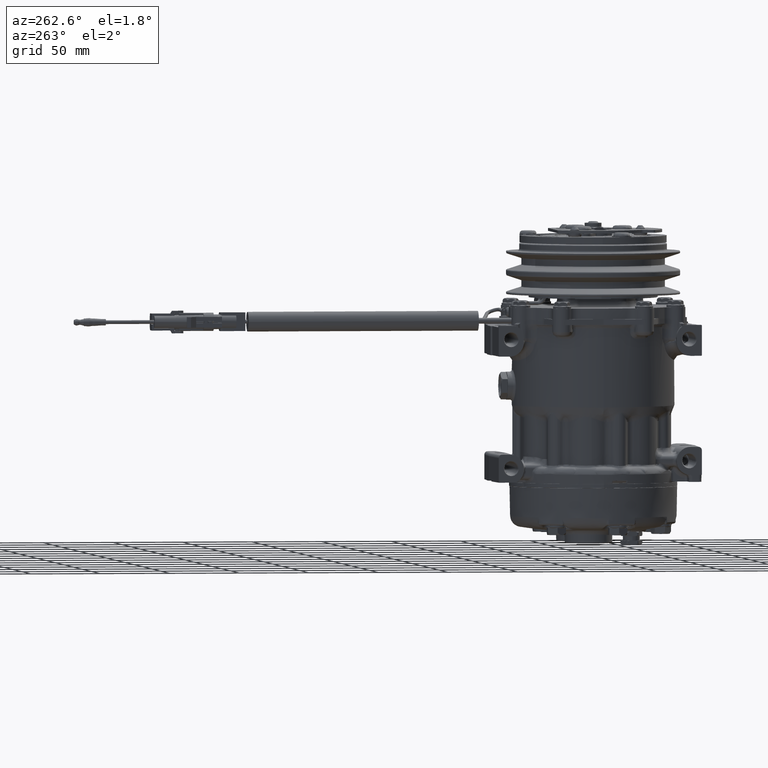
[diagram: clean part render]
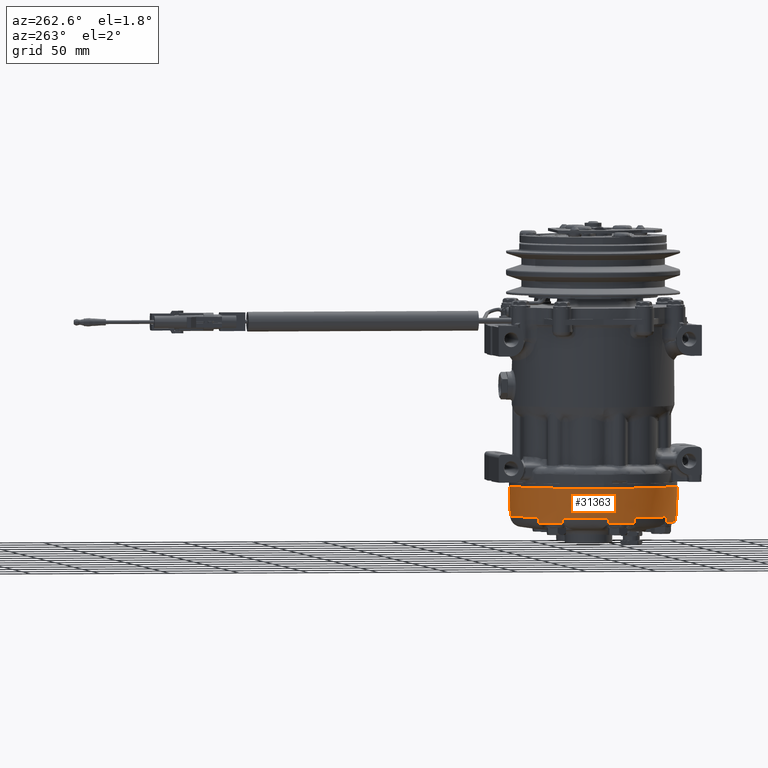
[diagram: same view with one face highlighted and labeled with its STEP entity id]
A machine part, auxiliary view. The second image highlights one B-rep face of the part: STEP entity #31363.
In plain terms, the highlighted conical surface has half-angle 1 deg.
Its self-contained STEP definition (entity closure, byte-faithful):
#30788 = VERTEX_POINT ( 'NONE', #82157 ) ;
#30812 = VERTEX_POINT ( 'NONE', #82187 ) ;
#31239 = VERTEX_POINT ( 'NONE', #83117 ) ;
#31241 = EDGE_LOOP ( 'NONE', ( #31367, #31371, #31351, #31251, #31366, #31243, #31248, #31338, #31445, #31343, #31309, #31335, #31339, #31320, #31316, #31443, #31330, #31312, #31337 ) ) ;
#31243 = ORIENTED_EDGE ( 'NONE', *, *, #31245, .F. ) ;
#31245 = EDGE_CURVE ( 'NONE', #31247, #30812, #83116, .T. ) ;
#31247 = VERTEX_POINT ( 'NONE', #83111 ) ;
#31248 = ORIENTED_EDGE ( 'NONE', *, *, #31317, .F. ) ;
#31251 = ORIENTED_EDGE ( 'NONE', *, *, #31365, .F. ) ;
#31252 = VERTEX_POINT ( 'NONE', #83109 ) ;
#31253 = EDGE_CURVE ( 'NONE', #31254, #31239, #83108, .T. ) ;
#31254 = VERTEX_POINT ( 'NONE', #83104 ) ;
#31255 = EDGE_CURVE ( 'NONE', #30812, #31252, #83102, .T. ) ;
#31287 = EDGE_CURVE ( 'NONE', #31354, #31336, #83187, .T. ) ;
#31309 = ORIENTED_EDGE ( 'NONE', *, *, #31333, .F. ) ;
#31310 = VERTEX_POINT ( 'NONE', #83210 ) ;
#31312 = ORIENTED_EDGE ( 'NONE', *, *, #31313, .F. ) ;
#31313 = EDGE_CURVE ( 'NONE', #31336, #31332, #83209, .T. ) ;
#31314 = EDGE_CURVE ( 'NONE', #31324, #31346, #83204, .T. ) ;
#31315 = EDGE_CURVE ( 'NONE', #31322, #31318, #83199, .T. ) ;
#31316 = ORIENTED_EDGE ( 'NONE', *, *, #31440, .F. ) ;
#31317 = EDGE_CURVE ( 'NONE', #31346, #31247, #83194, .T. ) ;
#31318 = VERTEX_POINT ( 'NONE', #83190 ) ;
#31320 = ORIENTED_EDGE ( 'NONE', *, *, #31315, .F. ) ;
#31322 = VERTEX_POINT ( 'NONE', #83189 ) ;
#31324 = VERTEX_POINT ( 'NONE', #83188 ) ;
#31326 = EDGE_CURVE ( 'NONE', #31327, #31310, #83241, .T. ) ;
#31327 = VERTEX_POINT ( 'NONE', #83236 ) ;
#31328 = VERTEX_POINT ( 'NONE', #83235 ) ;
#31329 = EDGE_CURVE ( 'NONE', #31442, #31441, #83234, .T. ) ;
#31330 = ORIENTED_EDGE ( 'NONE', *, *, #31331, .F. ) ;
#31331 = EDGE_CURVE ( 'NONE', #31332, #31442, #83229, .T. ) ;
#31332 = VERTEX_POINT ( 'NONE', #83228 ) ;
#31333 = EDGE_CURVE ( 'NONE', #31310, #31448, #83223, .T. ) ;
#31335 = ORIENTED_EDGE ( 'NONE', *, *, #31326, .F. ) ;
#31336 = VERTEX_POINT ( 'NONE', #83222 ) ;
#31337 = ORIENTED_EDGE ( 'NONE', *, *, #31287, .F. ) ;
#31338 = ORIENTED_EDGE ( 'NONE', *, *, #31314, .F. ) ;
#31339 = ORIENTED_EDGE ( 'NONE', *, *, #31341, .F. ) ;
#31341 = EDGE_CURVE ( 'NONE', #31318, #31327, #83269, .T. ) ;
#31343 = ORIENTED_EDGE ( 'NONE', *, *, #31344, .F. ) ;
#31344 = EDGE_CURVE ( 'NONE', #31448, #31328, #83263, .T. ) ;
#31346 = VERTEX_POINT ( 'NONE', #83259 ) ;
#31351 = ORIENTED_EDGE ( 'NONE', *, *, #31353, .F. ) ;
#31353 = EDGE_CURVE ( 'NONE', #30788, #31239, #83252, .T. ) ;
#31354 = VERTEX_POINT ( 'NONE', #83253 ) ;
#31363 = ADVANCED_FACE ( 'NONE', ( #83303 ), #83295, .T. ) ;
#31365 = EDGE_CURVE ( 'NONE', #31252, #30788, #83291, .T. ) ;
#31366 = ORIENTED_EDGE ( 'NONE', *, *, #31255, .F. ) ;
#31367 = ORIENTED_EDGE ( 'NONE', *, *, #31369, .F. ) ;
#31369 = EDGE_CURVE ( 'NONE', #31254, #31354, #83287, .T. ) ;
#31371 = ORIENTED_EDGE ( 'NONE', *, *, #31253, .T. ) ;
#31440 = EDGE_CURVE ( 'NONE', #31441, #31322, #83340, .T. ) ;
#31441 = VERTEX_POINT ( 'NONE', #83339 ) ;
#31442 = VERTEX_POINT ( 'NONE', #83341 ) ;
#31443 = ORIENTED_EDGE ( 'NONE', *, *, #31329, .F. ) ;
#31445 = ORIENTED_EDGE ( 'NONE', *, *, #31447, .F. ) ;
#31447 = EDGE_CURVE ( 'NONE', #31328, #31324, #83385, .T. ) ;
#31448 = VERTEX_POINT ( 'NONE', #83384 ) ;
#82157 = CARTESIAN_POINT ( 'NONE',  ( -56.59656727694814300, -16.71634188539467300, -61.35084198468192800 ) ) ;
#82187 = CARTESIAN_POINT ( 'NONE',  ( -58.42970723182837400, 8.052095088533175000, -61.35084198468184300 ) ) ;
#83098 = DIRECTION ( 'NONE',  ( -6.983277770476760500E-015, 1.000000000000000000, 3.469951687193421400E-015 ) ) ;
#83099 = DIRECTION ( 'NONE',  ( 2.417750077055339500E-029, -3.462353714736198700E-015, 1.000000000000000000 ) ) ;
#83100 = CARTESIAN_POINT ( 'NONE',  ( 1.018713123910802900, -0.0001151383021147367500, -61.35084198468187100 ) ) ;
#83101 = AXIS2_PLACEMENT_3D ( 'NONE', #83100, #83099, #83098 ) ;
#83102 = CIRCLE ( 'NONE', #83101, 59.99127246799999800 ) ;
#83104 = CARTESIAN_POINT ( 'NONE',  ( 1.018713123911211900, -59.62190735825755200, -82.51835118388704900 ) ) ;
#83105 = DIRECTION ( 'NONE',  ( 1.197323407885318500E-016, -0.01745240646579495100, 0.9998476951558935600 ) ) ;
#83106 = VECTOR ( 'NONE', #83105, 1000.000000000000200 ) ;
#83107 = CARTESIAN_POINT ( 'NONE',  ( 1.018713123911211500, -59.55193577330202000, -86.52702059468208500 ) ) ;
#83108 = LINE ( 'NONE', #83107, #83106 ) ;
#83109 = CARTESIAN_POINT ( 'NONE',  ( -58.67992344889228900, -5.918355052177898500, -61.35084198468189200 ) ) ;
#83111 = CARTESIAN_POINT ( 'NONE',  ( 1.018713123910383900, 59.99115732969788400, -61.35084198468166500 ) ) ;
#83112 = DIRECTION ( 'NONE',  ( -6.983277770476760500E-015, 1.000000000000000000, 3.469951687193421400E-015 ) ) ;
#83113 = DIRECTION ( 'NONE',  ( 2.417750077055339500E-029, -3.462353714736198700E-015, 1.000000000000000000 ) ) ;
#83114 = CARTESIAN_POINT ( 'NONE',  ( 1.018713123910802900, -0.0001151383021147367500, -61.35084198468187100 ) ) ;
#83115 = AXIS2_PLACEMENT_3D ( 'NONE', #83114, #83113, #83112 ) ;
#83116 = CIRCLE ( 'NONE', #83115, 59.99127246799999800 ) ;
#83117 = CARTESIAN_POINT ( 'NONE',  ( 1.018713123911214400, -59.99138760630211200, -61.35084198468208400 ) ) ;
#83182 = CARTESIAN_POINT ( 'NONE',  ( -15.68775299800917400, -57.16053265597155800, -86.52702052665800600 ) ) ;
#83183 = CARTESIAN_POINT ( 'NONE',  ( -15.64859905738407900, -57.19682599524713900, -85.16055151009337000 ) ) ;
#83184 = CARTESIAN_POINT ( 'NONE',  ( -15.60928279215471900, -57.23255687820524400, -83.82432837316167700 ) ) ;
#83185 = CARTESIAN_POINT ( 'NONE',  ( -15.56980824969317500, -57.26772436099593500, -82.51835123153917100 ) ) ;
#83187 = B_SPLINE_CURVE_WITH_KNOTS ( 'NONE', 3,
 ( #83185, #83184, #83183, #83182 ),
 .UNSPECIFIED., .F., .F.,
 ( 4, 4 ),
 ( 0.0000000000000000000, 1.000000000000000000 ),
 .UNSPECIFIED. ) ;
#83188 = CARTESIAN_POINT ( 'NONE',  ( -38.81472373674354500, 44.36265546197010000, -82.51835121383140900 ) ) ;
#83189 = CARTESIAN_POINT ( 'NONE',  ( -54.08096539855281300, -22.59313989829809800, -86.52702052665789300 ) ) ;
#83190 = CARTESIAN_POINT ( 'NONE',  ( -58.42686208246569600, -3.555804857109934300, -86.52702059468190000 ) ) ;
#83191 = DIRECTION ( 'NONE',  ( -1.218695735732333500E-016, 0.01745240646578802600, 0.9998476951558936700 ) ) ;
#83192 = VECTOR ( 'NONE', #83191, 1000.000000000000100 ) ;
#83193 = CARTESIAN_POINT ( 'NONE',  ( 1.018713123910387000, 59.55170549669797000, -86.52702059468167300 ) ) ;
#83194 = LINE ( 'NONE', #83193, #83192 ) ;
#83195 = DIRECTION ( 'NONE',  ( -1.000000000000000000, -6.094788229992724400E-015, -2.330371709854686600E-016 ) ) ;
#83196 = DIRECTION ( 'NONE',  ( -2.438091212180733500E-029, 3.491483361109382100E-015, -1.000000000000000000 ) ) ;
#83197 = CARTESIAN_POINT ( 'NONE',  ( 1.018713123910802900, -0.0001151383020280005700, -86.52702059468187200 ) ) ;
#83198 = AXIS2_PLACEMENT_3D ( 'NONE', #83197, #83196, #83195 ) ;
#83199 = CIRCLE ( 'NONE', #83198, 59.55182063499999900 ) ;
#83200 = DIRECTION ( 'NONE',  ( -1.000000000000000000, -6.982966804494924400E-015, 1.396582084277185200E-015 ) ) ;
#83201 = DIRECTION ( 'NONE',  ( -2.438091212180733500E-029, 3.491483361109382100E-015, -1.000000000000000000 ) ) ;
#83202 = CARTESIAN_POINT ( 'NONE',  ( 1.018713123910802900, -0.0001151383020418783600, -82.51835118388683600 ) ) ;
#83203 = AXIS2_PLACEMENT_3D ( 'NONE', #83202, #83201, #83200 ) ;
#83204 = CIRCLE ( 'NONE', #83203, 59.62179221995551600 ) ;
#83205 = DIRECTION ( 'NONE',  ( -1.000000000000000000, -1.053568029299402800E-014, -2.330371709854686600E-016 ) ) ;
#83206 = DIRECTION ( 'NONE',  ( -2.438091212180733500E-029, 3.491483361109382100E-015, -1.000000000000000000 ) ) ;
#83207 = CARTESIAN_POINT ( 'NONE',  ( 1.018713123910802900, -0.0001151383020280005700, -86.52702059468187200 ) ) ;
#83208 = AXIS2_PLACEMENT_3D ( 'NONE', #83207, #83206, #83205 ) ;
#83209 = CIRCLE ( 'NONE', #83208, 59.55182063499999900 ) ;
#83210 = CARTESIAN_POINT ( 'NONE',  ( -51.14875458637453000, 28.86705341290788200, -82.51835123153897200 ) ) ;
#83218 = CARTESIAN_POINT ( 'NONE',  ( -51.01809035651066900, 28.95831065875775300, -86.52702052665772200 ) ) ;
#83219 = CARTESIAN_POINT ( 'NONE',  ( -51.06215820215035000, 28.92817326803104500, -85.16055151009308600 ) ) ;
#83220 = CARTESIAN_POINT ( 'NONE',  ( -51.10571355088101300, 28.89775294085491100, -83.82432837316137900 ) ) ;
#83221 = CARTESIAN_POINT ( 'NONE',  ( -51.14875458637453000, 28.86705341290788200, -82.51835123153897200 ) ) ;
#83222 = CARTESIAN_POINT ( 'NONE',  ( -15.68775299800917400, -57.16053265597155800, -86.52702052665800600 ) ) ;
#83223 = B_SPLINE_CURVE_WITH_KNOTS ( 'NONE', 3,
 ( #83221, #83220, #83219, #83218 ),
 .UNSPECIFIED., .F., .F.,
 ( 4, 4 ),
 ( 0.0000000000000000000, 1.000000000000000000 ),
 .UNSPECIFIED. ) ;
#83224 = CARTESIAN_POINT ( 'NONE',  ( -33.39836603346743300, -48.68504884193512800, -82.51835120388852800 ) ) ;
#83225 = CARTESIAN_POINT ( 'NONE',  ( -33.34625649884746700, -48.69396997156624700, -83.82432837316164900 ) ) ;
#83226 = CARTESIAN_POINT ( 'NONE',  ( -33.29380528860126300, -48.70241599147266200, -85.16055151009334200 ) ) ;
#83227 = CARTESIAN_POINT ( 'NONE',  ( -33.24101566764068800, -48.71038432345568500, -86.52702059468205700 ) ) ;
#83228 = CARTESIAN_POINT ( 'NONE',  ( -33.24101566764068800, -48.71038432345568500, -86.52702059468205700 ) ) ;
#83229 = B_SPLINE_CURVE_WITH_KNOTS ( 'NONE', 3,
 ( #83227, #83226, #83225, #83224 ),
 .UNSPECIFIED., .F., .F.,
 ( 4, 4 ),
 ( 0.0000000000000000000, 1.000000000000000000 ),
 .UNSPECIFIED. ) ;
#83230 = DIRECTION ( 'NONE',  ( -1.000000000000000000, -4.318431375929067500E-015, 1.396582084277185200E-015 ) ) ;
#83231 = DIRECTION ( 'NONE',  ( -2.438091212180733500E-029, 3.491483361109382100E-015, -1.000000000000000000 ) ) ;
#83232 = CARTESIAN_POINT ( 'NONE',  ( 1.018713123910802900, -0.0001151383020418783600, -82.51835118388683600 ) ) ;
#83233 = AXIS2_PLACEMENT_3D ( 'NONE', #83232, #83231, #83230 ) ;
#83234 = CIRCLE ( 'NONE', #83233, 59.62179221995551600 ) ;
#83235 = CARTESIAN_POINT ( 'NONE',  ( -38.87434565042110500, 44.21485068323205800, -86.52702059468173000 ) ) ;
#83236 = CARTESIAN_POINT ( 'NONE',  ( -58.50509184796799600, -3.416948318889043300, -82.51835130005183300 ) ) ;
#83237 = DIRECTION ( 'NONE',  ( -1.000000000000000000, -6.982966804494924400E-015, 1.396582084277185200E-015 ) ) ;
#83238 = DIRECTION ( 'NONE',  ( -2.438091212180733500E-029, 3.491483361109382100E-015, -1.000000000000000000 ) ) ;
#83239 = CARTESIAN_POINT ( 'NONE',  ( 1.018713123910802900, -0.0001151383020418783600, -82.51835118388683600 ) ) ;
#83240 = AXIS2_PLACEMENT_3D ( 'NONE', #83239, #83238, #83237 ) ;
#83241 = CIRCLE ( 'NONE', #83240, 59.62179221995551600 ) ;
#83248 = DIRECTION ( 'NONE',  ( -6.983277770476760500E-015, 1.000000000000000000, 3.469951687193421400E-015 ) ) ;
#83249 = DIRECTION ( 'NONE',  ( 2.417750077055339500E-029, -3.462353714736198700E-015, 1.000000000000000000 ) ) ;
#83250 = CARTESIAN_POINT ( 'NONE',  ( 1.018713123910802900, -0.0001151383021147367500, -61.35084198468187100 ) ) ;
#83251 = AXIS2_PLACEMENT_3D ( 'NONE', #83250, #83249, #83248 ) ;
#83252 = CIRCLE ( 'NONE', #83251, 59.99127246799999800 ) ;
#83253 = CARTESIAN_POINT ( 'NONE',  ( -15.56980824969317500, -57.26772436099593500, -82.51835123153917100 ) ) ;
#83259 = CARTESIAN_POINT ( 'NONE',  ( 1.018713139200983800, 59.62167708166830900, -82.51835118015164000 ) ) ;
#83260 = DIRECTION ( 'NONE',  ( -1.000000000000000000, -6.982966642592985600E-015, -2.330371709854686600E-016 ) ) ;
#83261 = DIRECTION ( 'NONE',  ( -2.438091212180733500E-029, 3.491483361109382100E-015, -1.000000000000000000 ) ) ;
#83262 = AXIS2_PLACEMENT_3D ( 'NONE', #83268, #83261, #83260 ) ;
#83263 = CIRCLE ( 'NONE', #83262, 59.55182063499999900 ) ;
#83264 = CARTESIAN_POINT ( 'NONE',  ( -58.50509184796799600, -3.416948318889043300, -82.51835130005183300 ) ) ;
#83265 = CARTESIAN_POINT ( 'NONE',  ( -58.47959975643920700, -3.463264007190433300, -83.82432837316149200 ) ) ;
#83266 = CARTESIAN_POINT ( 'NONE',  ( -58.45352316108948500, -3.509550914407859600, -85.16055151009318500 ) ) ;
#83267 = CARTESIAN_POINT ( 'NONE',  ( -58.42686208246569600, -3.555804857109934300, -86.52702059468190000 ) ) ;
#83268 = CARTESIAN_POINT ( 'NONE',  ( 1.018713123910802900, -0.0001151383020280005700, -86.52702059468187200 ) ) ;
#83269 = B_SPLINE_CURVE_WITH_KNOTS ( 'NONE', 3,
 ( #83267, #83266, #83265, #83264 ),
 .UNSPECIFIED., .F., .F.,
 ( 4, 4 ),
 ( 0.0000000000000000000, 1.000000000000000000 ),
 .UNSPECIFIED. ) ;
#83283 = DIRECTION ( 'NONE',  ( -1.000000000000000000, -3.430253121721192600E-015, 1.396582084277185200E-015 ) ) ;
#83284 = DIRECTION ( 'NONE',  ( -2.438091212180733500E-029, 3.491483361109382100E-015, -1.000000000000000000 ) ) ;
#83285 = CARTESIAN_POINT ( 'NONE',  ( 1.018713123910802900, -0.0001151383020418783600, -82.51835118388683600 ) ) ;
#83286 = AXIS2_PLACEMENT_3D ( 'NONE', #83285, #83284, #83283 ) ;
#83287 = CIRCLE ( 'NONE', #83286, 59.62179221995551600 ) ;
#83288 = DIRECTION ( 'NONE',  ( -6.983277770476760500E-015, 1.000000000000000000, 3.469951687193421400E-015 ) ) ;
#83289 = DIRECTION ( 'NONE',  ( 2.417750077055339500E-029, -3.462353714736198700E-015, 1.000000000000000000 ) ) ;
#83290 = AXIS2_PLACEMENT_3D ( 'NONE', #83296, #83289, #83288 ) ;
#83291 = CIRCLE ( 'NONE', #83290, 59.99127246799999800 ) ;
#83292 = DIRECTION ( 'NONE',  ( -6.983832717970763400E-015, 1.000000000000000000, 3.495557564782029800E-015 ) ) ;
#83293 = DIRECTION ( 'NONE',  ( 2.417750077055339500E-029, -3.462353714736198700E-015, 1.000000000000000000 ) ) ;
#83294 = AXIS2_PLACEMENT_3D ( 'NONE', #83297, #83293, #83292 ) ;
#83295 = CONICAL_SURFACE ( 'NONE', #83294, 59.55182063500000600, 0.01745329254845561300 ) ;
#83296 = CARTESIAN_POINT ( 'NONE',  ( 1.018713123910802900, -0.0001151383021147367500, -61.35084198468187100 ) ) ;
#83297 = CARTESIAN_POINT ( 'NONE',  ( 1.018713123910802900, -0.0001151383020280005700, -86.52702059468188600 ) ) ;
#83303 = FACE_OUTER_BOUND ( 'NONE', #31241, .T. ) ;
#83335 = CARTESIAN_POINT ( 'NONE',  ( -54.08096539855281300, -22.59313989829809800, -86.52702052665789300 ) ) ;
#83336 = CARTESIAN_POINT ( 'NONE',  ( -54.08491338877295400, -22.64638135055369300, -85.16055151009325600 ) ) ;
#83337 = CARTESIAN_POINT ( 'NONE',  ( -54.08832048678370800, -22.69939887867349900, -83.82432837316156300 ) ) ;
#83338 = CARTESIAN_POINT ( 'NONE',  ( -54.09118849818759100, -22.75218868416745700, -82.51835123153914300 ) ) ;
#83339 = CARTESIAN_POINT ( 'NONE',  ( -54.09118849818759100, -22.75218868416745700, -82.51835123153914300 ) ) ;
#83340 = B_SPLINE_CURVE_WITH_KNOTS ( 'NONE', 3,
 ( #83338, #83337, #83336, #83335 ),
 .UNSPECIFIED., .F., .F.,
 ( 4, 4 ),
 ( 0.0000000000000000000, 1.000000000000000000 ),
 .UNSPECIFIED. ) ;
#83341 = CARTESIAN_POINT ( 'NONE',  ( -33.39836603346743300, -48.68504884193512800, -82.51835120388852800 ) ) ;
#83380 = CARTESIAN_POINT ( 'NONE',  ( -38.81472373674354500, 44.36265546197010000, -82.51835121383140900 ) ) ;
#83381 = CARTESIAN_POINT ( 'NONE',  ( -38.83498620240138200, 44.31382494492932300, -83.82432837316132200 ) ) ;
#83382 = CARTESIAN_POINT ( 'NONE',  ( -38.85486125237603300, 44.26455581567928700, -85.16055151009302900 ) ) ;
#83383 = CARTESIAN_POINT ( 'NONE',  ( -38.87434565042110500, 44.21485068323205800, -86.52702059468173000 ) ) ;
#83384 = CARTESIAN_POINT ( 'NONE',  ( -51.01809035651066900, 28.95831065875775300, -86.52702052665772200 ) ) ;
#83385 = B_SPLINE_CURVE_WITH_KNOTS ( 'NONE', 3,
 ( #83383, #83382, #83381, #83380 ),
 .UNSPECIFIED., .F., .F.,
 ( 4, 4 ),
 ( 0.0000000000000000000, 1.000000000000000000 ),
 .UNSPECIFIED. ) ;